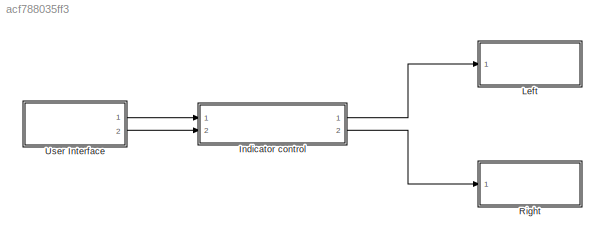
MODEL slx_acf788035ff3
KIND model
CONFIG AbsTol = auto
CONFIG FixedStep = 1
CONFIG MaxStep = auto
CONFIG MinStep = auto
CONFIG RelTol = 1e-3
CONFIG SampleTimeConstraint = Unconstrained
CONFIG Solver = FixedStepDiscrete
CONFIG SolverMode = Auto
CONFIG SolverName = FixedStepDiscrete
CONFIG StartTime = 0.0
CONFIG StopTime = 100
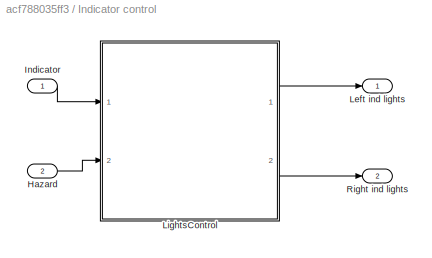
BLOCK [SubSystem] Indicator control
  Ports = [2, 2]
  RequestExecContextInheritance = off
BLOCK [Inport] Indicator control/Hazard
  IconDisplay = Port number
  Port = 2
BLOCK [Inport] Indicator control/Indicator
  IconDisplay = Port number
BLOCK [Outport] Indicator control/Left ind lights
  IconDisplay = Port number
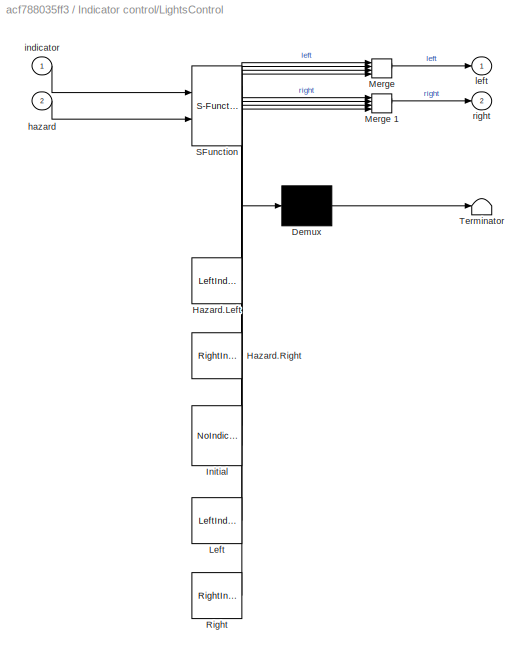
BLOCK [SubSystem] Indicator control/LightsControl
  ErrorFcn = Stateflow.Translate.translate
  PermitHierarchicalResolution = ExplicitOnly
  Ports = [2, 2]
  RequestExecContextInheritance = off
  SFBlockType = Chart
  TreatAsAtomicUnit = on
BLOCK [Demux] Indicator control/LightsControl/ Demux 
  Outputs = 1
  Ports = [1, 1]
BLOCK [Merge] Indicator control/LightsControl/ Merge 
  Inputs = 4
  Ports = [4, 1]
BLOCK [Merge] Indicator control/LightsControl/ Merge 1
  Inputs = 4
  Ports = [4, 1]
BLOCK [S-Function] Indicator control/LightsControl/ SFunction 
  EnableBusSupport = on
  FunctionName = sf_sfun
  PortCounts = [2 3]
  Ports = [2, 3]
  Tag = Stateflow S-Function lab5_v1 3
BLOCK [Terminator] Indicator control/LightsControl/ Terminator 
BLOCK [Reference] Indicator control/LightsControl/Hazard.Left  REF=LeftIndicator/LeftIndicator
  FunctionWithSeparateData = off
  GeneratePreprocessorConditionals = off
  Ports = [0, 1]
  ShowPortLabels = FromPortIcon
  SourceBlock = LeftIndicator/LeftIndicator
  SystemSampleTime = -1
BLOCK [Reference] Indicator control/LightsControl/Hazard.Right  REF=RightIndicator/RightIndicator
  FunctionWithSeparateData = off
  GeneratePreprocessorConditionals = off
  Ports = [0, 1]
  ShowPortLabels = FromPortIcon
  SourceBlock = RightIndicator/RightIndicator
  SystemSampleTime = -1
BLOCK [Reference] Indicator control/LightsControl/Initial  REF=NoIndicators/NoIndicators
  FunctionWithSeparateData = off
  GeneratePreprocessorConditionals = off
  Ports = [0, 2]
  ShowPortLabels = FromPortIcon
  SourceBlock = NoIndicators/NoIndicators
  SystemSampleTime = -1
BLOCK [Reference] Indicator control/LightsControl/Left  REF=LeftIndicator/LeftIndicator
  FunctionWithSeparateData = off
  GeneratePreprocessorConditionals = off
  Ports = [0, 1]
  ShowPortLabels = FromPortIcon
  SourceBlock = LeftIndicator/LeftIndicator
  SystemSampleTime = -1
BLOCK [Reference] Indicator control/LightsControl/Right  REF=RightIndicator/RightIndicator
  FunctionWithSeparateData = off
  GeneratePreprocessorConditionals = off
  Ports = [0, 1]
  ShowPortLabels = FromPortIcon
  SourceBlock = RightIndicator/RightIndicator
  SystemSampleTime = -1
BLOCK [Inport] Indicator control/LightsControl/hazard
  IconDisplay = Port number
  Port = 2
BLOCK [Inport] Indicator control/LightsControl/indicator
  IconDisplay = Port number
BLOCK [Outport] Indicator control/LightsControl/left
  IconDisplay = Port number
BLOCK [Outport] Indicator control/LightsControl/right
  IconDisplay = Port number
  Port = 2
BLOCK [Outport] Indicator control/Right ind lights
  IconDisplay = Port number
  Port = 2
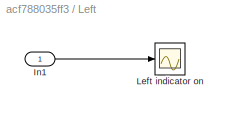
BLOCK [SubSystem] Left
  Ports = [1]
  RequestExecContextInheritance = off
BLOCK [Inport] Left/In1
  IconDisplay = Port number
BLOCK [Scope] Left/Left indicator on
  DataFormat = StructureWithTime
  Floating = off
  LimitDataPoints = off
  NumInputPorts = 1
  Ports = [1]
  YMax = 1.125
  YMin = -0.125
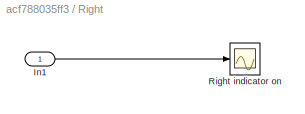
BLOCK [SubSystem] Right
  Ports = [1]
  RequestExecContextInheritance = off
BLOCK [Inport] Right/In1
  IconDisplay = Port number
BLOCK [Scope] Right/Right indicator on
  DataFormat = StructureWithTime
  Floating = off
  LimitDataPoints = off
  NumInputPorts = 1
  Ports = [1]
  SaveName = ScopeData1
  YMax = 1.125
  YMin = -0.125
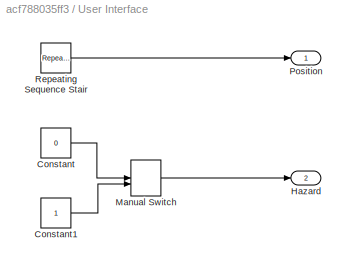
BLOCK [SubSystem] User Interface
  Ports = [0, 2]
  RequestExecContextInheritance = off
BLOCK [Constant] User Interface/Constant
  Value = 0
BLOCK [Constant] User Interface/Constant1
BLOCK [Outport] User Interface/Hazard
  IconDisplay = Port number
  Port = 2
BLOCK [ManualSwitch] User Interface/Manual Switch
BLOCK [Outport] User Interface/Position
  IconDisplay = Port number
BLOCK [Reference] User Interface/Repeating Sequence Stair  REF=simulink/Sources/Repeating
Sequence
Stair
  ConRadixGroup = Best Precision: Vector-wise
  LockScale = off
  OutDataType = fixdt(0,8)
  OutDataTypeStr = double
  OutMax = []
  OutMin = []
  OutScaling = 2^-12
  OutValues = [0 1 1 -1 -1 0 0 -1 -1 0 1 1]
  OutputDataTypeScalingMode = double
  Ports = [0, 1]
  SourceBlock = simulink/Sources/Repeating\nSequence\nStair
  SourceType = Repeating Sequence Stair
  tsamp = -1
LINE Indicator control/Hazard:1 -> Indicator control/LightsControl:2
LINE Indicator control/Indicator:1 -> Indicator control/LightsControl:1
LINE Indicator control/LightsControl:1 -> Indicator control/Left ind lights:1
LINE Indicator control/LightsControl:2 -> Indicator control/Right ind lights:1
LINE Indicator control:1 -> Left:1
LINE Indicator control:2 -> Right:1
LINE Left/In1:1 -> Left/Left indicator on:1
LINE Right/In1:1 -> Right/Right indicator on:1
LINE User Interface/Constant1:1 -> User Interface/Manual Switch:2
LINE User Interface/Constant:1 -> User Interface/Manual Switch:1
LINE User Interface/Manual Switch:1 -> User Interface/Hazard:1
LINE User Interface/Repeating Sequence Stair:1 -> User Interface/Position:1
LINE User Interface:1 -> Indicator control:1
LINE User Interface:2 -> Indicator control:2
CHART Indicator control/LightsControl states=7 transitions=13
  STATE_LABEL 'delay(time)'
  STATE_LABEL '[i<time]'
  STATE_LABEL '{i=0}'
  STATE_LABEL '{i = i + 1}'
  STATE_LABEL 'Left'
  STATE_LABEL 'Initial'
  STATE_LABEL 'Right'
  STATE_LABEL 'Hazard'
  STATE_LABEL 'Right'
  STATE_LABEL 'Left'
  STATE_LABEL 'Right'
  STATE_LABEL 'Left'
